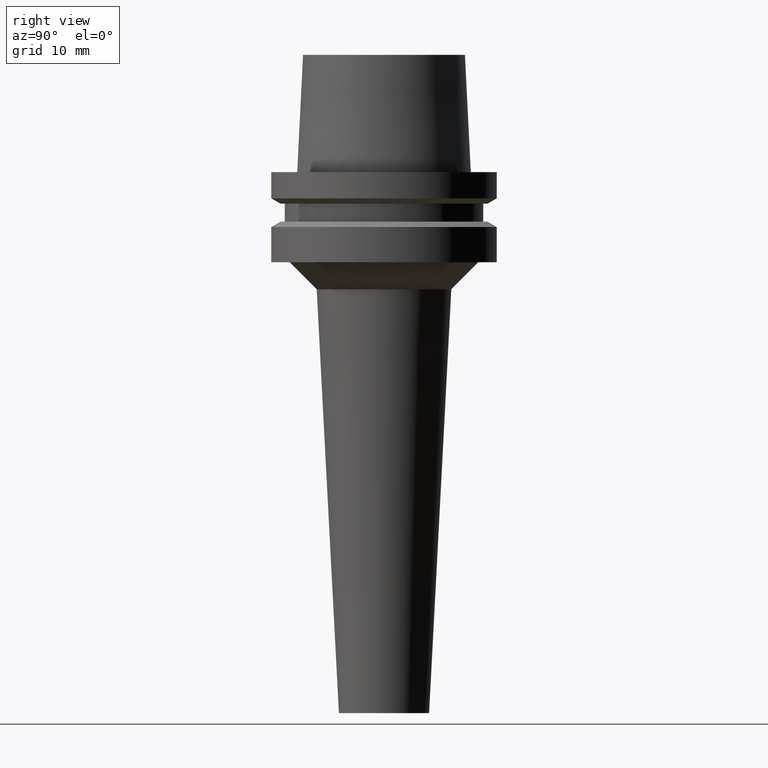
[diagram: clean part render]
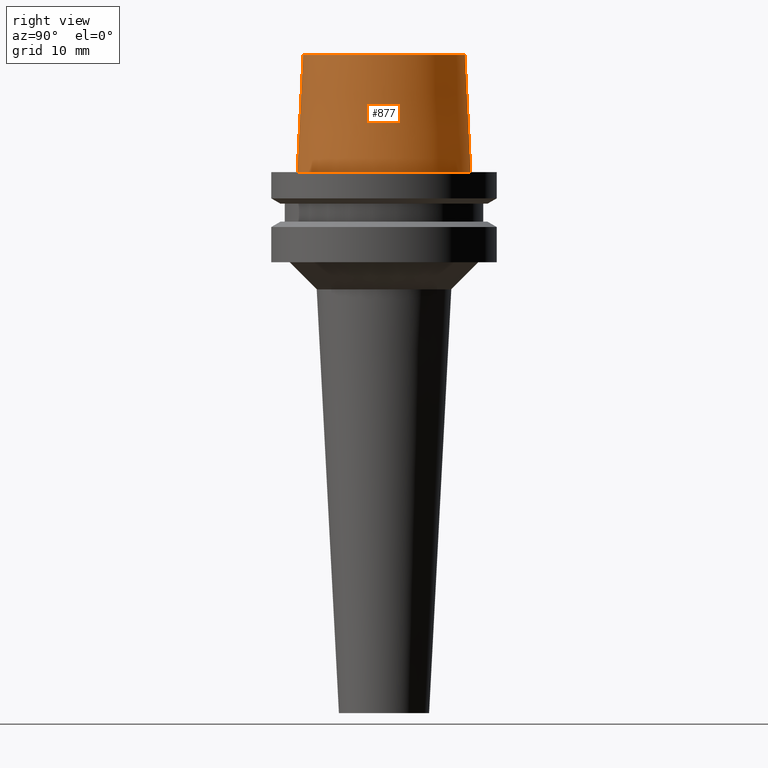
[diagram: same view with one face highlighted and labeled with its STEP entity id]
A machine part, right view. The second image highlights one B-rep face of the part: STEP entity #877.
In plain terms, the highlighted conical surface has half-angle 2.862 deg.
Its self-contained STEP definition (entity closure, byte-faithful):
#26=CARTESIAN_POINT('',(0.E0,1.304248841092E-14,1.3E1));
#27=DIRECTION('',(0.E0,0.E0,-1.E0));
#28=DIRECTION('',(0.E0,1.E0,0.E0));
#29=AXIS2_PLACEMENT_3D('',#26,#27,#28);
#50=DIRECTION('',(0.E0,-4.993752584485E-2,-9.987523434328E-1));
#51=VECTOR('',#50,1.301623979706E1);
#52=CARTESIAN_POINT('',(0.E0,-8.975000960130E0,1.3E1));
#53=LINE('',#52,#51);
#57=DIRECTION('',(0.E0,4.993752584485E-2,-9.987523434328E-1));
#58=VECTOR('',#57,1.301623979706E1);
#59=CARTESIAN_POINT('',(0.E0,8.975000960130E0,1.3E1));
#60=LINE('',#59,#58);
#80=CARTESIAN_POINT('',(0.E0,1.304248841092E-14,2.557953848736E-13));
#81=DIRECTION('',(0.E0,0.E0,1.E0));
#82=DIRECTION('',(0.E0,-1.E0,0.E0));
#83=AXIS2_PLACEMENT_3D('',#80,#81,#82);
#720=CARTESIAN_POINT('',(0.E0,-8.975000960130E0,1.3E1));
#721=CARTESIAN_POINT('',(0.E0,8.975000960130E0,1.3E1));
#722=VERTEX_POINT('',#720);
#723=VERTEX_POINT('',#721);
#828=CARTESIAN_POINT('',(0.E0,-9.624999771398E0,2.557953848736E-13));
#829=CARTESIAN_POINT('',(0.E0,9.624999771398E0,2.557953848736E-13));
#830=VERTEX_POINT('',#828);
#831=VERTEX_POINT('',#829);
#865=CARTESIAN_POINT('',(0.E0,1.304248841092E-14,6.5E0));
#866=DIRECTION('',(0.E0,0.E0,-1.E0));
#867=DIRECTION('',(0.E0,-1.E0,0.E0));
#868=AXIS2_PLACEMENT_3D('',#865,#866,#867);
#869=CONICAL_SURFACE('',#868,9.300000365764E0,2.8624E0);
#870=ORIENTED_EDGE('',*,*,#855,.T.);
#872=ORIENTED_EDGE('',*,*,#871,.F.);
#873=ORIENTED_EDGE('',*,*,#858,.F.);
#874=ORIENTED_EDGE('',*,*,#839,.F.);
#875=EDGE_LOOP('',(#870,#872,#873,#874));
#876=FACE_OUTER_BOUND('',#875,.F.);
#30=CIRCLE('',#29,8.975000960130E0);
#84=CIRCLE('',#83,9.624999771398E0);
#839=EDGE_CURVE('',#723,#722,#30,.T.);
#855=EDGE_CURVE('',#723,#831,#60,.T.);
#858=EDGE_CURVE('',#722,#830,#53,.T.);
#871=EDGE_CURVE('',#830,#831,#84,.T.);
#877=ADVANCED_FACE('',(#876),#869,.T.);